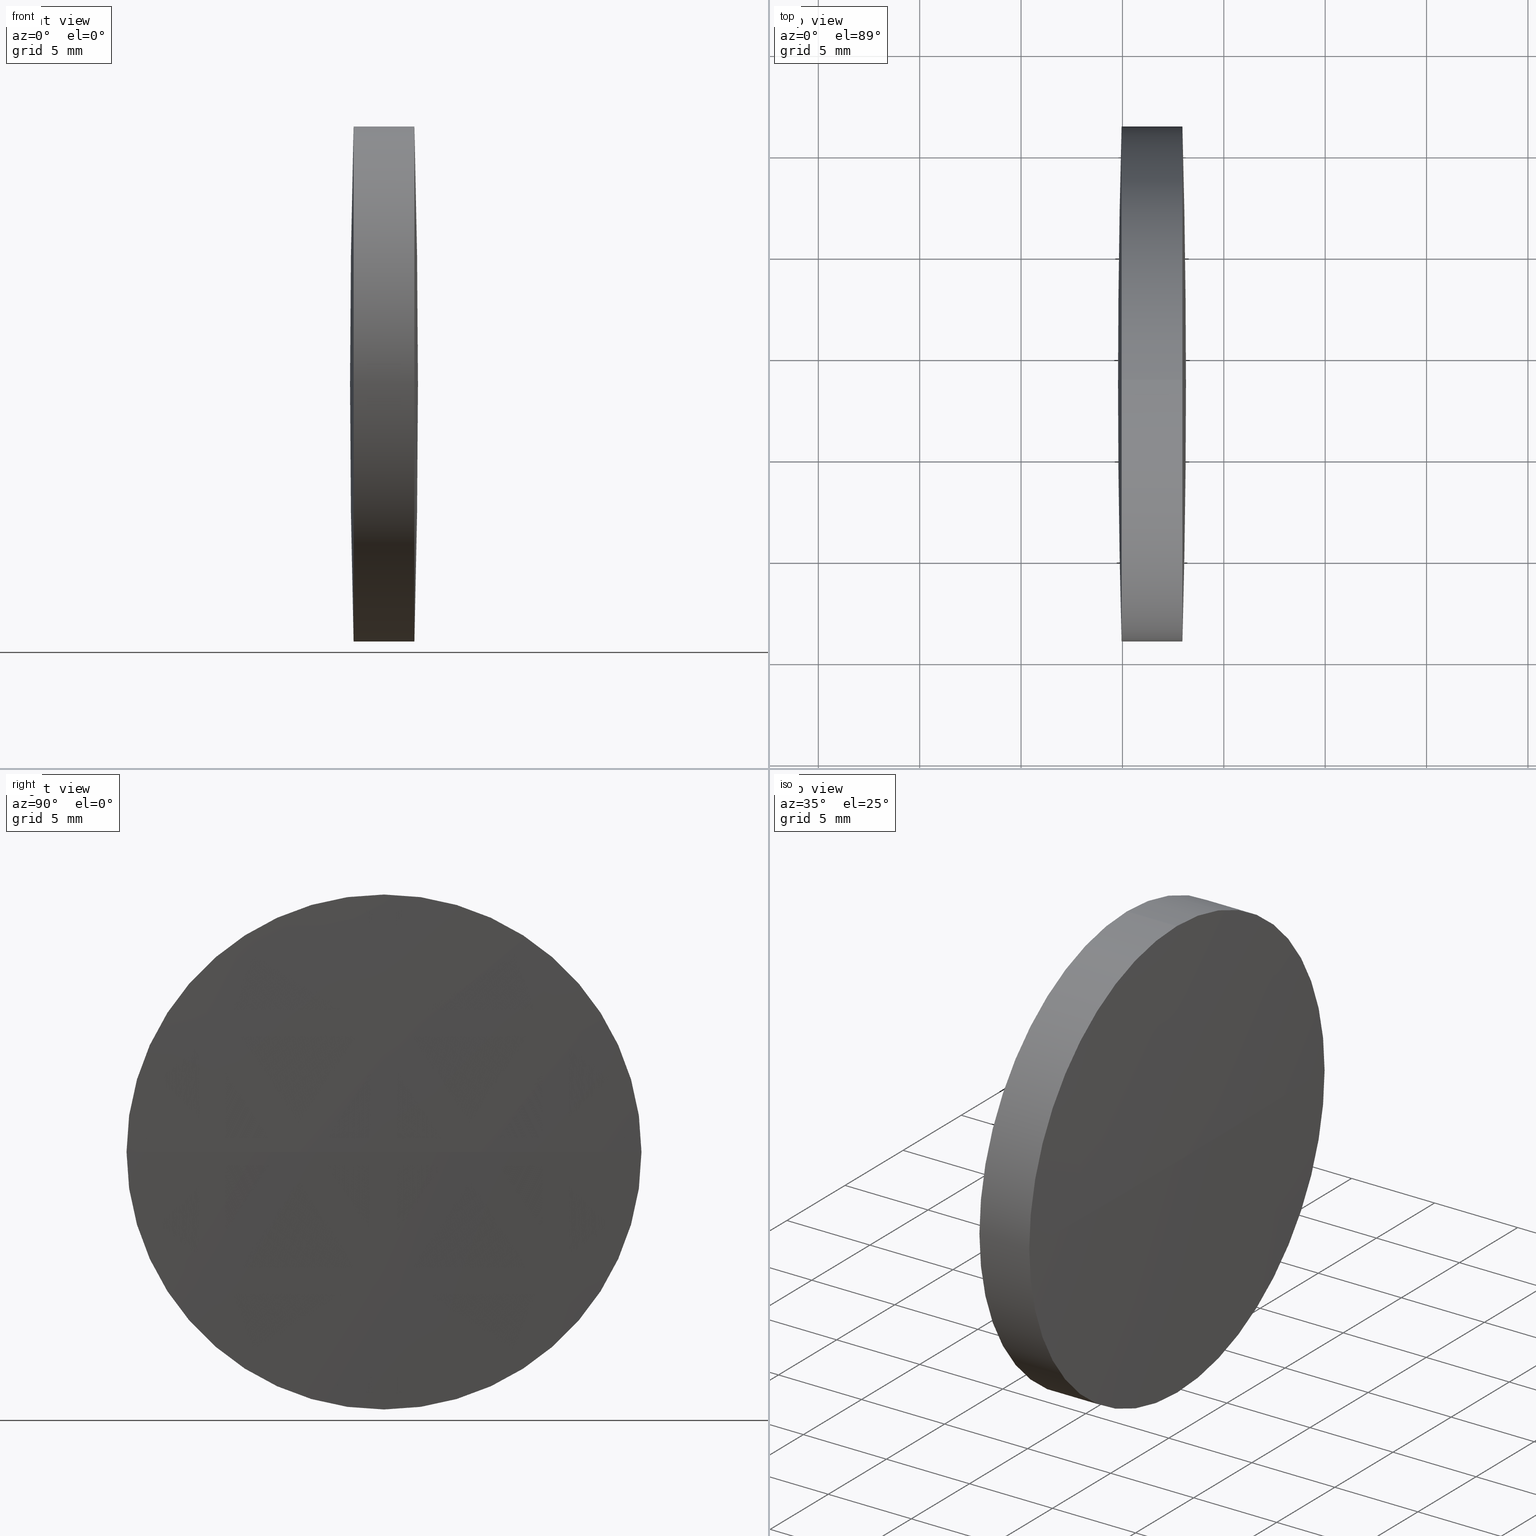
[diagram: canonical four-view strip — front | top / right | iso, engineering-drawing reading convention]
A machine part, canonical four-view strip (front | top / right | iso — engineering-drawing reading convention). The complete STEP part file that produces these views, byte-faithful:
ISO-10303-21;
HEADER;
FILE_DESCRIPTION (( 'STEP AP203' ),
    '1' );
FILE_NAME ('11012.STEP',
    '2019-07-08T06:55:16',
    ( '' ),
    ( '' ),
    'SwSTEP 2.0',
    'SolidWorks 2016',
    '' );
FILE_SCHEMA (( 'CONFIG_CONTROL_DESIGN' ));
ENDSEC;

DATA;
#1 = CARTESIAN_POINT ( 'NONE',  ( 545.8555533294535300, 48.61611302318567600, 0.0000000000000000000 ) ) ;
#2 = CARTESIAN_POINT ( 'NONE',  ( 83.37198105152671700, 48.61611302318477400, 12.69999999999982000 ) ) ;
#3 = COORDINATED_UNIVERSAL_TIME_OFFSET ( 8, 0, .AHEAD. ) ;
#4 = CARTESIAN_POINT ( 'NONE',  ( 87.95817263180538200, 48.61611302318477400, 0.0000000000000000000 ) ) ;
#5 = DIRECTION ( 'NONE',  ( -1.000000000000000000, -0.0000000000000000000, -0.0000000000000000000 ) ) ;
#6 = CC_DESIGN_APPROVAL ( #337, ( #128 ) ) ;
#7 = AXIS2_PLACEMENT_3D ( 'NONE', #62, #30, #26 ) ;
#8 = APPROVAL_DATE_TIME ( #122, #278 ) ;
#9 =( NAMED_UNIT ( * ) PLANE_ANGLE_UNIT ( ) SI_UNIT ( $, .RADIAN. ) );
#10 = VERTEX_POINT ( 'NONE', #165 ) ;
#11 = LINE ( 'NONE', #254, #153 ) ;
#12 = CALENDAR_DATE ( 2019, 8, 7 ) ;
#13 = APPROVAL_STATUS ( 'not_yet_approved' ) ;
#14 = LOCAL_TIME ( 14, 55, 16.00000000000000000, #238 ) ;
#15 = EDGE_LOOP ( 'NONE', ( #81, #239, #38, #47 ) ) ;
#16 = LOCAL_TIME ( 14, 55, 16.00000000000000000, #79 ) ;
#17 = AXIS2_PLACEMENT_3D ( 'NONE', #35, #284, #267 ) ;
#18 = APPLICATION_CONTEXT ( 'configuration controlled 3d designs of mechanical parts and assemblies' ) ;
#19 = APPROVAL_ROLE ( '' ) ;
#20 = SPHERICAL_SURFACE ( 'NONE', #266, 461.0722791008984100 ) ;
#21 = CYLINDRICAL_SURFACE ( 'NONE', #234, 12.69999999999982000 ) ;
#22 = APPROVAL_PERSON_ORGANIZATION ( #125, #103, #109 ) ;
#23 = CC_DESIGN_SECURITY_CLASSIFICATION ( #128, ( #96 ) ) ;
#24 = ORIENTED_EDGE ( 'NONE', *, *, #115, .T. ) ;
#25 = CARTESIAN_POINT ( 'NONE',  ( 84.95821491751965500, 48.61611302318477400, 0.0000000000000000000 ) ) ;
#26 = DIRECTION ( 'NONE',  ( 1.000000000000000000, 0.0000000000000000000, 0.0000000000000000000 ) ) ;
#27 = UNCERTAINTY_MEASURE_WITH_UNIT (LENGTH_MEASURE( 1.000000000000000100E-005 ), #148, 'distance_accuracy_value', 'NONE');
#28 = FACE_OUTER_BOUND ( 'NONE', #61, .T. ) ;
#29 = ADVANCED_FACE ( 'NONE', ( #144 ), #197, .T. ) ;
#30 = DIRECTION ( 'NONE',  ( -0.0000000000000000000, 0.0000000000000000000, 1.000000000000000000 ) ) ;
#31 = ORIENTED_EDGE ( 'NONE', *, *, #301, .T. ) ;
#32 = EDGE_LOOP ( 'NONE', ( #85, #24, #282, #251 ) ) ;
#33 = AXIS2_PLACEMENT_3D ( 'NONE', #246, #326, #90 ) ;
#34 = CALENDAR_DATE ( 2019, 8, 7 ) ;
#35 = CARTESIAN_POINT ( 'NONE',  ( 0.0000000000000000000, 0.0000000000000000000, 0.0000000000000000000 ) ) ;
#36 = CC_DESIGN_PERSON_AND_ORGANIZATION_ASSIGNMENT ( #175, #340, ( #206 ) ) ;
#37 = ORIENTED_EDGE ( 'NONE', *, *, #283, .F. ) ;
#38 = ORIENTED_EDGE ( 'NONE', *, *, #181, .F. ) ;
#39 = CARTESIAN_POINT ( 'NONE',  ( 87.95817263180538200, 48.61611302318477400, 12.69999999999998900 ) ) ;
#40 = LOCAL_TIME ( 14, 55, 16.00000000000000000, #167 ) ;
#41 = APPROVAL ( #240, 'δָ��' ) ;
#42 = PERSON_AND_ORGANIZATION_ROLE ( 'creator' ) ;
#43 = PERSON_AND_ORGANIZATION ( #306, #302 ) ;
#44 = AXIS2_PLACEMENT_3D ( 'NONE', #25, #223, #272 ) ;
#45 = APPROVAL_ROLE ( '' ) ;
#46 = APPROVAL_PERSON_ORGANIZATION ( #231, #41, #288 ) ;
#47 = ORIENTED_EDGE ( 'NONE', *, *, #68, .F. ) ;
#48 = SECURITY_CLASSIFICATION_LEVEL ( 'unclassified' ) ;
#49 = ORIENTED_EDGE ( 'NONE', *, *, #283, .T. ) ;
#50 = PERSON_AND_ORGANIZATION_ROLE ( 'creator' ) ;
#51 = APPROVAL_DATE_TIME ( #289, #41 ) ;
#52 = ORIENTED_EDGE ( 'NONE', *, *, #83, .F. ) ;
#53 =( GEOMETRIC_REPRESENTATION_CONTEXT ( 3 ) GLOBAL_UNCERTAINTY_ASSIGNED_CONTEXT ( ( #27 ) ) GLOBAL_UNIT_ASSIGNED_CONTEXT ( ( #148, #9, #331 ) ) REPRESENTATION_CONTEXT ( 'NONE', 'WORKASPACE' ) );
#54 = DIRECTION ( 'NONE',  ( 0.0000000000000000000, 0.0000000000000000000, 1.000000000000000000 ) ) ;
#55 = FACE_OUTER_BOUND ( 'NONE', #15, .T. ) ;
#56 = AXIS2_PLACEMENT_3D ( 'NONE', #163, #166, #54 ) ;
#57 = CALENDAR_DATE ( 2019, 8, 7 ) ;
#58 = CC_DESIGN_SECURITY_CLASSIFICATION ( #295, ( #194 ) ) ;
#59 = DIRECTION ( 'NONE',  ( 0.0000000000000000000, 0.0000000000000000000, 1.000000000000000000 ) ) ;
#60 = PRODUCT_DEFINITION ( 'δ֪', '', #96, #76 ) ;
#61 = EDGE_LOOP ( 'NONE', ( #52, #316, #198, #258 ) ) ;
#62 = CARTESIAN_POINT ( 'NONE',  ( -372.9391657802283900, 48.61611302318455300, 0.0000000000000000000 ) ) ;
#63 = AXIS2_PLACEMENT_3D ( 'NONE', #201, #256, #146 ) ;
#64 = DIRECTION ( 'NONE',  ( 0.0000000000000000000, 0.0000000000000000000, 1.000000000000000000 ) ) ;
#65 = DIRECTION ( 'NONE',  ( 0.0000000000000000000, 0.0000000000000000000, 1.000000000000000000 ) ) ;
#66 = CC_DESIGN_APPROVAL ( #247, ( #118 ) ) ;
#67 = AXIS2_PLACEMENT_3D ( 'NONE', #270, #172, #117 ) ;
#68 = EDGE_CURVE ( 'NONE', #183, #317, #292, .T. ) ;
#69 = ORIENTED_EDGE ( 'NONE', *, *, #70, .F. ) ;
#70 = EDGE_CURVE ( 'NONE', #10, #151, #131, .T. ) ;
#71 = CARTESIAN_POINT ( 'NONE',  ( 83.37198105152671700, 48.61611302318477400, 0.0000000000000000000 ) ) ;
#72 = CALENDAR_DATE ( 2019, 8, 7 ) ;
#73 = MECHANICAL_CONTEXT ( 'NONE', #105, 'mechanical' ) ;
#74 = PERSON_AND_ORGANIZATION ( #306, #302 ) ;
#75 = ORIENTED_EDGE ( 'NONE', *, *, #202, .T. ) ;
#76 = DESIGN_CONTEXT ( 'detailed design', #18, 'design' ) ;
#77 = CC_DESIGN_PERSON_AND_ORGANIZATION_ASSIGNMENT ( #255, #42, ( #60 ) ) ;
#78 = PERSON_AND_ORGANIZATION_ROLE ( 'creator' ) ;
#79 = COORDINATED_UNIVERSAL_TIME_OFFSET ( 8, 0, .AHEAD. ) ;
#80 = APPROVAL_ROLE ( '' ) ;
#81 = ORIENTED_EDGE ( 'NONE', *, *, #195, .F. ) ;
#82 = CC_DESIGN_PERSON_AND_ORGANIZATION_ASSIGNMENT ( #273, #50, ( #118 ) ) ;
#83 = EDGE_CURVE ( 'NONE', #214, #184, #334, .T. ) ;
#84 = DIRECTION ( 'NONE',  ( -1.000000000000000000, -0.0000000000000000000, -0.0000000000000000000 ) ) ;
#85 = ORIENTED_EDGE ( 'NONE', *, *, #217, .T. ) ;
#86 = MANIFOLD_SOLID_BREP ( '��ת1', #192 ) ;
#87 = DIRECTION ( 'NONE',  ( -1.000000000000000000, -0.0000000000000000000, -0.0000000000000000000 ) ) ;
#88 = CALENDAR_DATE ( 2019, 8, 7 ) ;
#89 = DIRECTION ( 'NONE',  ( 0.0000000000000000000, 1.000000000000000000, 0.0000000000000000000 ) ) ;
#90 = DIRECTION ( 'NONE',  ( 0.0000000000000000000, 0.0000000000000000000, 1.000000000000000000 ) ) ;
#91 = COORDINATED_UNIVERSAL_TIME_OFFSET ( 8, 0, .AHEAD. ) ;
#92 = EDGE_CURVE ( 'NONE', #279, #10, #265, .T. ) ;
#93 = DIRECTION ( 'NONE',  ( 0.0000000000000000000, 1.000000000000000000, 0.0000000000000000000 ) ) ;
#94 = DIRECTION ( 'NONE',  ( -0.0000000000000000000, 0.0000000000000000000, -1.000000000000000000 ) ) ;
#95 = CARTESIAN_POINT ( 'NONE',  ( 87.95817263180538200, 48.61611302318477400, -12.69999999999998900 ) ) ;
#96 = PRODUCT_DEFINITION_FORMATION_WITH_SPECIFIED_SOURCE ( '�κ�', '', #206, .NOT_KNOWN. ) ;
#97 = PERSON_AND_ORGANIZATION ( #306, #302 ) ;
#98 = LOCAL_TIME ( 14, 55, 16.00000000000000000, #91 ) ;
#99 = CARTESIAN_POINT ( 'NONE',  ( 87.95817263180538200, 48.61611302318477400, 0.0000000000000000000 ) ) ;
#100 = PRODUCT ( '11012', '11012', '', ( #73 ) ) ;
#101 = APPROVAL_DATE_TIME ( #245, #103 ) ;
#102 = APPLICATION_CONTEXT ( 'configuration controlled 3d designs of mechanical parts and assemblies' ) ;
#103 = APPROVAL ( #13, 'δָ��' ) ;
#104 = EDGE_CURVE ( 'NONE', #151, #110, #259, .T. ) ;
#105 = APPLICATION_CONTEXT ( 'configuration controlled 3d designs of mechanical parts and assemblies' ) ;
#106 = COORDINATED_UNIVERSAL_TIME_OFFSET ( 8, 0, .AHEAD. ) ;
#107 = PERSON_AND_ORGANIZATION_ROLE ( 'classification_officer' ) ;
#108 = APPLICATION_PROTOCOL_DEFINITION ( 'international standard', 'config_control_design', 1994, #102 ) ;
#109 = APPROVAL_ROLE ( '' ) ;
#110 = VERTEX_POINT ( 'NONE', #329 ) ;
#111 = LOCAL_TIME ( 14, 55, 16.00000000000000000, #106 ) ;
#112 = EDGE_LOOP ( 'NONE', ( #37, #212, #133, #31, #205, #325 ) ) ;
#113 = DATE_AND_TIME ( #34, #116 ) ;
#114 = ADVANCED_FACE ( 'NONE', ( #135 ), #119, .T. ) ;
#115 = EDGE_CURVE ( 'NONE', #290, #279, #189, .T. ) ;
#116 = LOCAL_TIME ( 14, 55, 16.00000000000000000, #186 ) ;
#117 = DIRECTION ( 'NONE',  ( 1.000000000000000000, 0.0000000000000000000, 0.0000000000000000000 ) ) ;
#118 = PRODUCT_DEFINITION ( 'δ֪', '', #194, #321 ) ;
#119 = SPHERICAL_SURFACE ( 'NONE', #158, 461.0722791007986000 ) ;
#120 = CARTESIAN_POINT ( 'NONE',  ( 88.13311332067003400, 48.61611302318458200, 0.0000000000000000000 ) ) ;
#121 = ORIENTED_EDGE ( 'NONE', *, *, #301, .F. ) ;
#122 = DATE_AND_TIME ( #261, #323 ) ;
#123 = LINE ( 'NONE', #2, #319 ) ;
#124 = CARTESIAN_POINT ( 'NONE',  ( -372.9391657802283900, 48.61611302318455300, 0.0000000000000000000 ) ) ;
#125 = PERSON_AND_ORGANIZATION ( #306, #302 ) ;
#126 = PERSON_AND_ORGANIZATION ( #306, #302 ) ;
#127 = DIRECTION ( 'NONE',  ( -1.000000000000000000, -0.0000000000000000000, -0.0000000000000000000 ) ) ;
#128 = SECURITY_CLASSIFICATION ( '', '', #286 ) ;
#129 = AXIS2_PLACEMENT_3D ( 'NONE', #193, #84, #59 ) ;
#130 = DIRECTION ( 'NONE',  ( -1.000000000000000000, -0.0000000000000000000, -0.0000000000000000000 ) ) ;
#131 = CIRCLE ( 'NONE', #338, 12.69999999999964900 ) ;
#132 = CALENDAR_DATE ( 2019, 8, 7 ) ;
#133 = ORIENTED_EDGE ( 'NONE', *, *, #68, .T. ) ;
#134 = ADVANCED_FACE ( 'NONE', ( #225 ), #244, .T. ) ;
#135 = FACE_OUTER_BOUND ( 'NONE', #252, .T. ) ;
#136 = PRODUCT_DEFINITION_SHAPE ( 'NONE', 'NONE',  #60 ) ;
#137 = PERSON_AND_ORGANIZATION_ROLE ( 'design_supplier' ) ;
#138 = DATE_TIME_ROLE ( 'classification_date' ) ;
#139 = CC_DESIGN_APPROVAL ( #41, ( #295 ) ) ;
#140 = CC_DESIGN_PERSON_AND_ORGANIZATION_ASSIGNMENT ( #149, #137, ( #96 ) ) ;
#141 = CC_DESIGN_DATE_AND_TIME_ASSIGNMENT ( #305, #156, ( #295 ) ) ;
#142 = CC_DESIGN_DATE_AND_TIME_ASSIGNMENT ( #274, #188, ( #118 ) ) ;
#143 = PERSON_AND_ORGANIZATION ( #306, #302 ) ;
#144 = FACE_OUTER_BOUND ( 'NONE', #160, .T. ) ;
#145 = DIRECTION ( 'NONE',  ( 0.0000000000000000000, 0.0000000000000000000, 1.000000000000000000 ) ) ;
#146 = DIRECTION ( 'NONE',  ( 0.0000000000000000000, 1.000000000000000000, 1.224646799147353200E-016 ) ) ;
#147 = CARTESIAN_POINT ( 'NONE',  ( 0.0000000000000000000, 0.0000000000000000000, 0.0000000000000000000 ) ) ;
#148 =( LENGTH_UNIT ( ) NAMED_UNIT ( * ) SI_UNIT ( .MILLI., .METRE. ) );
#149 = PERSON_AND_ORGANIZATION ( #306, #302 ) ;
#150 = DIRECTION ( 'NONE',  ( 0.0000000000000000000, 1.000000000000000000, 1.224646799147353200E-016 ) ) ;
#151 = VERTEX_POINT ( 'NONE', #296 ) ;
#152 = CC_DESIGN_DATE_AND_TIME_ASSIGNMENT ( #248, #138, ( #128 ) ) ;
#153 = VECTOR ( 'NONE', #127, 1000.000000000000000 ) ;
#154 = APPROVAL_STATUS ( 'not_yet_approved' ) ;
#155 = PRODUCT_RELATED_PRODUCT_CATEGORY ( 'detail', '', ( #100 ) ) ;
#156 = DATE_TIME_ROLE ( 'classification_date' ) ;
#157 = CC_DESIGN_PERSON_AND_ORGANIZATION_ASSIGNMENT ( #74, #213, ( #128 ) ) ;
#158 = AXIS2_PLACEMENT_3D ( 'NONE', #1, #199, #89 ) ;
#159 = APPROVAL_STATUS ( 'not_yet_approved' ) ;
#160 = EDGE_LOOP ( 'NONE', ( #75, #49, #220, #69, #121, #260 ) ) ;
#161 = ADVANCED_BREP_SHAPE_REPRESENTATION ( '11012', ( #86, #178 ), #53 ) ;
#162 = DATE_TIME_ROLE ( 'creation_date' ) ;
#163 = CARTESIAN_POINT ( 'NONE',  ( 83.37198105152671700, 48.61611302318477400, 0.0000000000000000000 ) ) ;
#164 = PERSON_AND_ORGANIZATION ( #306, #302 ) ;
#165 = CARTESIAN_POINT ( 'NONE',  ( 84.95821491751965500, 48.61611302318477400, 12.69999999999964900 ) ) ;
#166 = DIRECTION ( 'NONE',  ( -1.000000000000000000, -0.0000000000000000000, -0.0000000000000000000 ) ) ;
#167 = COORDINATED_UNIVERSAL_TIME_OFFSET ( 8, 0, .AHEAD. ) ;
#168 = DIRECTION ( 'NONE',  ( -0.0000000000000000000, 0.0000000000000000000, -1.000000000000000000 ) ) ;
#169 = CALENDAR_DATE ( 2019, 8, 7 ) ;
#170 = CIRCLE ( 'NONE', #250, 12.69999999999964900 ) ;
#171 = DIRECTION ( 'NONE',  ( -1.000000000000000000, -0.0000000000000000000, -0.0000000000000000000 ) ) ;
#172 = DIRECTION ( 'NONE',  ( -0.0000000000000000000, 0.0000000000000000000, 1.000000000000000000 ) ) ;
#173 = CARTESIAN_POINT ( 'NONE',  ( 84.95821491751965500, 48.61611302318477400, -12.69999999999964900 ) ) ;
#174 = APPROVAL_PERSON_ORGANIZATION ( #143, #247, #19 ) ;
#175 = PERSON_AND_ORGANIZATION ( #306, #302 ) ;
#176 = CARTESIAN_POINT ( 'NONE',  ( 545.8555533294535300, 48.61611302318567600, 0.0000000000000000000 ) ) ;
#177 = DIRECTION ( 'NONE',  ( 0.0000000000000000000, 0.0000000000000000000, 1.000000000000000000 ) ) ;
#178 = AXIS2_PLACEMENT_3D ( 'NONE', #147, #291, #187 ) ;
#179 = AXIS2_PLACEMENT_3D ( 'NONE', #327, #171, #64 ) ;
#180 = CARTESIAN_POINT ( 'NONE',  ( 84.95821491751965500, 48.61611302318477400, 0.0000000000000000000 ) ) ;
#181 = EDGE_CURVE ( 'NONE', #317, #184, #249, .T. ) ;
#182 = AXIS2_PLACEMENT_3D ( 'NONE', #99, #257, #145 ) ;
#183 = VERTEX_POINT ( 'NONE', #219 ) ;
#184 = VERTEX_POINT ( 'NONE', #324 ) ;
#185 = CIRCLE ( 'NONE', #215, 461.0722791007986000 ) ;
#186 = COORDINATED_UNIVERSAL_TIME_OFFSET ( 8, 0, .AHEAD. ) ;
#187 = DIRECTION ( 'NONE',  ( 1.000000000000000000, 0.0000000000000000000, 0.0000000000000000000 ) ) ;
#188 = DATE_TIME_ROLE ( 'creation_date' ) ;
#189 = CIRCLE ( 'NONE', #129, 12.69999999999964900 ) ;
#190 = CC_DESIGN_DATE_AND_TIME_ASSIGNMENT ( #113, #162, ( #60 ) ) ;
#191 = APPROVAL_STATUS ( 'not_yet_approved' ) ;
#192 = CLOSED_SHELL ( 'NONE', ( #29, #268, #134, #114, #310, #342 ) ) ;
#193 = CARTESIAN_POINT ( 'NONE',  ( 84.95821491751965500, 48.61611302318477400, 0.0000000000000000000 ) ) ;
#194 = PRODUCT_DEFINITION_FORMATION_WITH_SPECIFIED_SOURCE ( '�κ�', '', #100, .NOT_KNOWN. ) ;
#195 = EDGE_CURVE ( 'NONE', #214, #183, #200, .T. ) ;
#196 = DIRECTION ( 'NONE',  ( 0.0000000000000000000, 0.0000000000000000000, 1.000000000000000000 ) ) ;
#197 = CYLINDRICAL_SURFACE ( 'NONE', #56, 12.69999999999982000 ) ;
#198 = ORIENTED_EDGE ( 'NONE', *, *, #322, .F. ) ;
#199 = DIRECTION ( 'NONE',  ( -0.0000000000000000000, 0.0000000000000000000, -1.000000000000000000 ) ) ;
#200 = CIRCLE ( 'NONE', #63, 461.0722791008984100 ) ;
#201 = CARTESIAN_POINT ( 'NONE',  ( -372.9391657802283900, 48.61611302318455300, 0.0000000000000000000 ) ) ;
#202 = EDGE_CURVE ( 'NONE', #184, #344, #304, .T. ) ;
#203 = LOCAL_TIME ( 14, 55, 16.00000000000000000, #269 ) ;
#204 = CARTESIAN_POINT ( 'NONE',  ( 84.95821491751965500, 35.91611302318524000, -1.555301434917192300E-015 ) ) ;
#205 = ORIENTED_EDGE ( 'NONE', *, *, #92, .F. ) ;
#206 = PRODUCT ( '11012', '11012', '', ( #263 ) ) ;
#207 = PERSON_AND_ORGANIZATION ( #306, #302 ) ;
#208 = APPLICATION_PROTOCOL_DEFINITION ( 'international standard', 'config_control_design', 1994, #18 ) ;
#209 = PRODUCT_RELATED_PRODUCT_CATEGORY ( 'detail', '', ( #206 ) ) ;
#210 = AXIS2_PLACEMENT_3D ( 'NONE', #221, #168, #224 ) ;
#211 = CALENDAR_DATE ( 2019, 8, 7 ) ;
#212 = ORIENTED_EDGE ( 'NONE', *, *, #322, .T. ) ;
#213 = PERSON_AND_ORGANIZATION_ROLE ( 'classification_officer' ) ;
#214 = VERTEX_POINT ( 'NONE', #120 ) ;
#215 = AXIS2_PLACEMENT_3D ( 'NONE', #176, #303, #150 ) ;
#216 = APPROVAL_STATUS ( 'not_yet_approved' ) ;
#217 = EDGE_CURVE ( 'NONE', #151, #290, #170, .T. ) ;
#218 = PRODUCT_DEFINITION_SHAPE ( 'NONE', 'NONE',  #118 ) ;
#219 = CARTESIAN_POINT ( 'NONE',  ( 87.95817263180541100, 35.91611302318504800, -1.555301434917077300E-015 ) ) ;
#220 = ORIENTED_EDGE ( 'NONE', *, *, #217, .F. ) ;
#221 = CARTESIAN_POINT ( 'NONE',  ( 545.8555533294535300, 48.61611302318567600, 0.0000000000000000000 ) ) ;
#222 = LOCAL_TIME ( 14, 55, 16.00000000000000000, #3 ) ;
#223 = DIRECTION ( 'NONE',  ( -1.000000000000000000, -0.0000000000000000000, -0.0000000000000000000 ) ) ;
#224 = DIRECTION ( 'NONE',  ( 0.0000000000000000000, 1.000000000000000000, 0.0000000000000000000 ) ) ;
#225 = FACE_OUTER_BOUND ( 'NONE', #32, .T. ) ;
#226 = DATE_AND_TIME ( #57, #203 ) ;
#227 = ORIENTED_EDGE ( 'NONE', *, *, #92, .T. ) ;
#228 = DIRECTION ( 'NONE',  ( -1.000000000000000000, -0.0000000000000000000, -0.0000000000000000000 ) ) ;
#229 = APPROVAL_DATE_TIME ( #297, #247 ) ;
#230 = APPROVAL ( #216, 'δָ��' ) ;
#231 = PERSON_AND_ORGANIZATION ( #306, #302 ) ;
#232 = AXIS2_PLACEMENT_3D ( 'NONE', #4, #228, #65 ) ;
#233 = CIRCLE ( 'NONE', #232, 12.69999999999998900 ) ;
#234 = AXIS2_PLACEMENT_3D ( 'NONE', #71, #300, #177 ) ;
#235 = DATE_AND_TIME ( #132, #98 ) ;
#236 = CARTESIAN_POINT ( 'NONE',  ( -372.9391657802283900, 48.61611302318455300, 0.0000000000000000000 ) ) ;
#237 = EDGE_CURVE ( 'NONE', #279, #110, #185, .T. ) ;
#238 = COORDINATED_UNIVERSAL_TIME_OFFSET ( 8, 0, .AHEAD. ) ;
#239 = ORIENTED_EDGE ( 'NONE', *, *, #83, .T. ) ;
#240 = APPROVAL_STATUS ( 'not_yet_approved' ) ;
#241 = PERSON_AND_ORGANIZATION ( #306, #302 ) ;
#242 = PERSON_AND_ORGANIZATION_ROLE ( 'creator' ) ;
#243 = SPHERICAL_SURFACE ( 'NONE', #280, 461.0722791008984100 ) ;
#244 = SPHERICAL_SURFACE ( 'NONE', #210, 461.0722791007986000 ) ;
#245 = DATE_AND_TIME ( #320, #40 ) ;
#246 = CARTESIAN_POINT ( 'NONE',  ( 87.95817263180538200, 48.61611302318477400, 0.0000000000000000000 ) ) ;
#247 = APPROVAL ( #154, 'δָ��' ) ;
#248 = DATE_AND_TIME ( #211, #277 ) ;
#249 = CIRCLE ( 'NONE', #179, 12.69999999999998900 ) ;
#250 = AXIS2_PLACEMENT_3D ( 'NONE', #180, #130, #332 ) ;
#251 = ORIENTED_EDGE ( 'NONE', *, *, #104, .F. ) ;
#252 = EDGE_LOOP ( 'NONE', ( #287, #227, #335, #341 ) ) ;
#253 = COORDINATED_UNIVERSAL_TIME_OFFSET ( 8, 0, .AHEAD. ) ;
#254 = CARTESIAN_POINT ( 'NONE',  ( 83.37198105152671700, 48.61611302318477400, -12.69999999999982000 ) ) ;
#255 = PERSON_AND_ORGANIZATION ( #306, #302 ) ;
#256 = DIRECTION ( 'NONE',  ( 0.0000000000000000000, 1.224646799147353200E-016, -1.000000000000000000 ) ) ;
#257 = DIRECTION ( 'NONE',  ( -1.000000000000000000, -0.0000000000000000000, -0.0000000000000000000 ) ) ;
#258 = ORIENTED_EDGE ( 'NONE', *, *, #202, .F. ) ;
#259 = CIRCLE ( 'NONE', #67, 461.0722791007986000 ) ;
#260 = ORIENTED_EDGE ( 'NONE', *, *, #181, .T. ) ;
#261 = CALENDAR_DATE ( 2019, 8, 7 ) ;
#262 = PERSON_AND_ORGANIZATION_ROLE ( 'design_owner' ) ;
#263 = MECHANICAL_CONTEXT ( 'NONE', #307, 'mechanical' ) ;
#264 = CC_DESIGN_APPROVAL ( #230, ( #194 ) ) ;
#265 = CIRCLE ( 'NONE', #44, 12.69999999999964900 ) ;
#266 = AXIS2_PLACEMENT_3D ( 'NONE', #124, #330, #93 ) ;
#267 = DIRECTION ( 'NONE',  ( 1.000000000000000000, 0.0000000000000000000, 0.0000000000000000000 ) ) ;
#268 = ADVANCED_FACE ( 'NONE', ( #28 ), #20, .T. ) ;
#269 = COORDINATED_UNIVERSAL_TIME_OFFSET ( 8, 0, .AHEAD. ) ;
#270 = CARTESIAN_POINT ( 'NONE',  ( 545.8555533294535300, 48.61611302318567600, 0.0000000000000000000 ) ) ;
#271 = CC_DESIGN_PERSON_AND_ORGANIZATION_ASSIGNMENT ( #299, #78, ( #194 ) ) ;
#272 = DIRECTION ( 'NONE',  ( 0.0000000000000000000, 0.0000000000000000000, 1.000000000000000000 ) ) ;
#273 = PERSON_AND_ORGANIZATION ( #306, #302 ) ;
#274 = DATE_AND_TIME ( #72, #222 ) ;
#275 = APPROVAL_PERSON_ORGANIZATION ( #241, #230, #80 ) ;
#276 = DIRECTION ( 'NONE',  ( 0.0000000000000000000, 1.000000000000000000, 0.0000000000000000000 ) ) ;
#277 = LOCAL_TIME ( 14, 55, 16.00000000000000000, #343 ) ;
#278 = APPROVAL ( #159, 'δָ��' ) ;
#279 = VERTEX_POINT ( 'NONE', #204 ) ;
#280 = AXIS2_PLACEMENT_3D ( 'NONE', #236, #94, #276 ) ;
#281 = FACE_OUTER_BOUND ( 'NONE', #112, .T. ) ;
#282 = ORIENTED_EDGE ( 'NONE', *, *, #237, .T. ) ;
#283 = EDGE_CURVE ( 'NONE', #344, #290, #11, .T. ) ;
#284 = DIRECTION ( 'NONE',  ( 0.0000000000000000000, 0.0000000000000000000, 1.000000000000000000 ) ) ;
#285 = PERSON_AND_ORGANIZATION ( #306, #302 ) ;
#286 = SECURITY_CLASSIFICATION_LEVEL ( 'unclassified' ) ;
#287 = ORIENTED_EDGE ( 'NONE', *, *, #237, .F. ) ;
#288 = APPROVAL_ROLE ( '' ) ;
#289 = DATE_AND_TIME ( #88, #16 ) ;
#290 = VERTEX_POINT ( 'NONE', #173 ) ;
#291 = DIRECTION ( 'NONE',  ( 0.0000000000000000000, 0.0000000000000000000, 1.000000000000000000 ) ) ;
#292 = CIRCLE ( 'NONE', #33, 12.69999999999998900 ) ;
#293 = CC_DESIGN_APPROVAL ( #278, ( #96 ) ) ;
#294 = APPROVAL_DATE_TIME ( #235, #230 ) ;
#295 = SECURITY_CLASSIFICATION ( '', '', #48 ) ;
#296 = CARTESIAN_POINT ( 'NONE',  ( 84.95821491751965500, 61.31611302318521700, 0.0000000000000000000 ) ) ;
#297 = DATE_AND_TIME ( #12, #14 ) ;
#298 = CARTESIAN_POINT ( 'NONE',  ( 84.95821491751965500, 48.61611302318477400, 0.0000000000000000000 ) ) ;
#299 = PERSON_AND_ORGANIZATION ( #306, #302 ) ;
#300 = DIRECTION ( 'NONE',  ( -1.000000000000000000, -0.0000000000000000000, -0.0000000000000000000 ) ) ;
#301 = EDGE_CURVE ( 'NONE', #317, #10, #123, .T. ) ;
#302 = ORGANIZATION ( 'δָ��', 'δָ��', '' ) ;
#303 = DIRECTION ( 'NONE',  ( 0.0000000000000000000, 1.224646799147353200E-016, -1.000000000000000000 ) ) ;
#304 = CIRCLE ( 'NONE', #182, 12.69999999999998900 ) ;
#305 = DATE_AND_TIME ( #169, #111 ) ;
#306 = PERSON ( 'δָ��', 'δָ��', 'δָ��', ('δָ��'), ('δָ��'), ('δָ��') ) ;
#307 = APPLICATION_CONTEXT ( 'configuration controlled 3d designs of mechanical parts and assemblies' ) ;
#308 = APPROVAL_DATE_TIME ( #226, #337 ) ;
#309 = PERSON_AND_ORGANIZATION_ROLE ( 'design_supplier' ) ;
#310 = ADVANCED_FACE ( 'NONE', ( #55 ), #243, .T. ) ;
#311 = CC_DESIGN_PERSON_AND_ORGANIZATION_ASSIGNMENT ( #164, #107, ( #295 ) ) ;
#312 = APPLICATION_PROTOCOL_DEFINITION ( 'international standard', 'config_control_design', 1994, #307 ) ;
#313 = CC_DESIGN_PERSON_AND_ORGANIZATION_ASSIGNMENT ( #285, #242, ( #96 ) ) ;
#314 = APPLICATION_PROTOCOL_DEFINITION ( 'international standard', 'config_control_design', 1994, #105 ) ;
#315 = CC_DESIGN_PERSON_AND_ORGANIZATION_ASSIGNMENT ( #126, #309, ( #194 ) ) ;
#316 = ORIENTED_EDGE ( 'NONE', *, *, #195, .T. ) ;
#317 = VERTEX_POINT ( 'NONE', #39 ) ;
#318 = APPROVAL_PERSON_ORGANIZATION ( #43, #278, #45 ) ;
#319 = VECTOR ( 'NONE', #5, 1000.000000000000000 ) ;
#320 = CALENDAR_DATE ( 2019, 8, 7 ) ;
#321 = DESIGN_CONTEXT ( 'detailed design', #102, 'design' ) ;
#322 = EDGE_CURVE ( 'NONE', #344, #183, #233, .T. ) ;
#323 = LOCAL_TIME ( 14, 55, 16.00000000000000000, #253 ) ;
#324 = CARTESIAN_POINT ( 'NONE',  ( 87.95817263180541100, 61.31611302318427900, 0.0000000000000000000 ) ) ;
#325 = ORIENTED_EDGE ( 'NONE', *, *, #115, .F. ) ;
#326 = DIRECTION ( 'NONE',  ( -1.000000000000000000, -0.0000000000000000000, -0.0000000000000000000 ) ) ;
#327 = CARTESIAN_POINT ( 'NONE',  ( 87.95817263180538200, 48.61611302318477400, 0.0000000000000000000 ) ) ;
#328 = SHAPE_DEFINITION_REPRESENTATION ( #218, #161 ) ;
#329 = CARTESIAN_POINT ( 'NONE',  ( 84.78327422865494600, 48.61611302318570400, 0.0000000000000000000 ) ) ;
#330 = DIRECTION ( 'NONE',  ( -0.0000000000000000000, 0.0000000000000000000, -1.000000000000000000 ) ) ;
#331 =( NAMED_UNIT ( * ) SI_UNIT ( $, .STERADIAN. ) SOLID_ANGLE_UNIT ( ) );
#332 = DIRECTION ( 'NONE',  ( 0.0000000000000000000, 0.0000000000000000000, 1.000000000000000000 ) ) ;
#333 = CC_DESIGN_PERSON_AND_ORGANIZATION_ASSIGNMENT ( #97, #262, ( #100 ) ) ;
#334 = CIRCLE ( 'NONE', #7, 461.0722791008984100 ) ;
#335 = ORIENTED_EDGE ( 'NONE', *, *, #70, .T. ) ;
#336 = APPROVAL_ROLE ( '' ) ;
#337 = APPROVAL ( #191, 'δָ��' ) ;
#338 = AXIS2_PLACEMENT_3D ( 'NONE', #298, #87, #196 ) ;
#339 = APPROVAL_PERSON_ORGANIZATION ( #207, #337, #336 ) ;
#340 = PERSON_AND_ORGANIZATION_ROLE ( 'design_owner' ) ;
#341 = ORIENTED_EDGE ( 'NONE', *, *, #104, .T. ) ;
#342 = ADVANCED_FACE ( 'NONE', ( #281 ), #21, .T. ) ;
#343 = COORDINATED_UNIVERSAL_TIME_OFFSET ( 8, 0, .AHEAD. ) ;
#344 = VERTEX_POINT ( 'NONE', #95 ) ;
#345 = CC_DESIGN_APPROVAL ( #103, ( #60 ) ) ;
ENDSEC;
END-ISO-10303-21;
